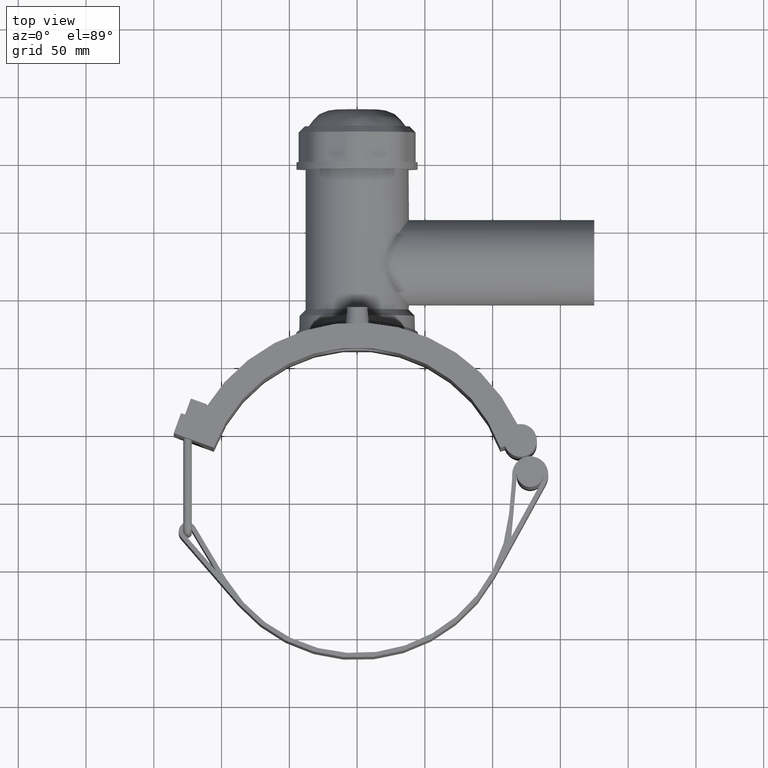
[diagram: clean part render]
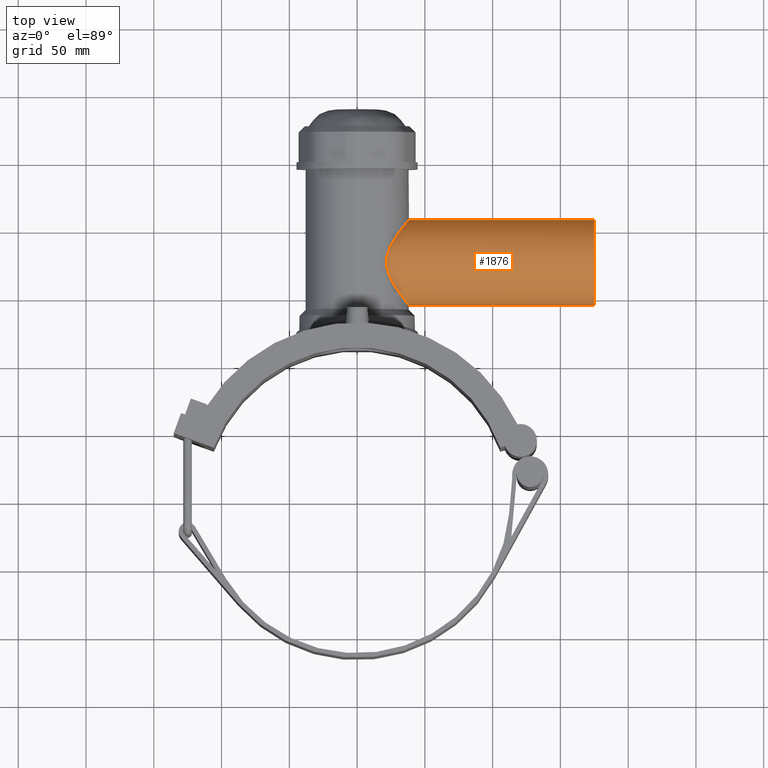
[diagram: same view with one face highlighted and labeled with its STEP entity id]
A machine part, top view. The second image highlights one B-rep face of the part: STEP entity #1876.
In plain terms, the highlighted cylindrical surface (bore or boss wall) has radius 31.5 mm, axis along (1, 0, 0).
Its self-contained STEP definition (entity closure, byte-faithful):
#364=FACE_BOUND('',#580,.T.);
#404=B_SPLINE_CURVE_WITH_KNOTS('',3,(#3012,#3013,#3014,#3015,#3016,#3017,
#3018,#3019,#3020,#3021,#3022,#3023,#3024,#3025,#3026,#3027,#3028,#3029,
#3030,#3031,#3032,#3033,#3034,#3035,#3036,#3037,#3038,#3039,#3040,#3041,
#3042,#3043,#3044,#3045,#3046,#3047,#3048,#3049,#3050,#3051,#3052,#3053,
#3054,#3055,#3056,#3057,#3058,#3059,#3060,#3061,#3062,#3063,#3064,#3065,
#3066,#3067,#3068,#3069,#3070,#3071,#3072,#3073,#3074,#3075,#3076,#3077),
 .UNSPECIFIED.,.T.,.F.,(4,2,2,2,2,2,2,2,2,2,2,2,2,2,2,2,2,2,2,2,2,2,2,2,
2,2,2,2,2,2,2,2,4),(0.,0.652796689588149,1.3055933791763,1.95839006876445,
2.6111867583526,3.23948206455184,3.86777737075108,4.49607267695031,5.12436798314955,
5.75266328934879,6.38095859554803,7.00925390174727,7.63754920794651,8.29034589753466,
8.94314258712281,9.59593927671096,10.2487359662991,10.9015326558873,11.5543293454754,
12.2071260350636,12.8599227246517,13.4882180308509,14.1165133370502,14.7448086432494,
15.3731039494487,16.0013992556479,16.6296945618471,17.2579898680464,17.8862851742456,
18.5390818638338,19.1918785534219,19.8446752430101,20.4974719325982),
 .UNSPECIFIED.);
#416=CYLINDRICAL_SURFACE('',#2001,31.5);
#455=FACE_OUTER_BOUND('',#579,.T.);
#579=EDGE_LOOP('',(#1272));
#580=EDGE_LOOP('',(#1273));
#735=CIRCLE('',#2002,31.5000000000001);
#824=VERTEX_POINT('',#3009);
#825=VERTEX_POINT('',#3011);
#1002=EDGE_CURVE('',#824,#824,#735,.T.);
#1003=EDGE_CURVE('',#825,#825,#404,.T.);
#1272=ORIENTED_EDGE('',*,*,#1002,.F.);
#1273=ORIENTED_EDGE('',*,*,#1003,.F.);
#1876=ADVANCED_FACE('',(#455,#364),#416,.T.);
#2001=AXIS2_PLACEMENT_3D('',#3008,#2220,#2221);
#2002=AXIS2_PLACEMENT_3D('',#3010,#2222,#2223);
#2220=DIRECTION('center_axis',(1.,0.,0.));
#2221=DIRECTION('ref_axis',(0.,1.,0.));
#2222=DIRECTION('center_axis',(1.,0.,0.));
#2223=DIRECTION('ref_axis',(0.,0.,-1.));
#3008=CARTESIAN_POINT('Origin',(87.5,176.5,0.));
#3009=CARTESIAN_POINT('',(175.,208.,0.));
#3010=CARTESIAN_POINT('Origin',(175.,176.5,0.));
#3011=CARTESIAN_POINT('',(21.6982142122341,176.5,-31.5));
#3012=CARTESIAN_POINT('Ctrl Pts',(21.6982142122341,176.5,-31.5));
#3013=CARTESIAN_POINT('Ctrl Pts',(21.6982142122341,174.324011034706,-31.5));
#3014=CARTESIAN_POINT('Ctrl Pts',(22.0343768586796,172.183577682531,-31.2741376319905));
#3015=CARTESIAN_POINT('Ctrl Pts',(23.2007398956815,168.050616906894,-30.418926907059));
#3016=CARTESIAN_POINT('Ctrl Pts',(24.0243956426947,166.056246059544,-29.7895749556435));
#3017=CARTESIAN_POINT('Ctrl Pts',(25.8975998798563,162.266727439002,-28.1763146954825));
#3018=CARTESIAN_POINT('Ctrl Pts',(26.9464594243519,160.469770993618,-27.1908633698675));
#3019=CARTESIAN_POINT('Ctrl Pts',(29.053881666026,157.135480776756,-24.9264254867234));
#3020=CARTESIAN_POINT('Ctrl Pts',(30.1124022762952,155.598764076137,-23.6464912908894));
#3021=CARTESIAN_POINT('Ctrl Pts',(32.0419320403235,152.905027470864,-20.9527546856161));
#3022=CARTESIAN_POINT('Ctrl Pts',(32.9904954067574,151.638558531341,-19.4477672034472));
#3023=CARTESIAN_POINT('Ctrl Pts',(34.7367127963482,149.364088353459,-16.1229408161184));
#3024=CARTESIAN_POINT('Ctrl Pts',(35.5337778302742,148.356067395002,-14.3028060934795));
#3025=CARTESIAN_POINT('Ctrl Pts',(36.852915268844,146.707904627357,-10.4442475124384));
#3026=CARTESIAN_POINT('Ctrl Pts',(37.3759384535401,146.066324368989,-8.40126277746278));
#3027=CARTESIAN_POINT('Ctrl Pts',(38.0746610206936,145.212180501508,-4.22636720518858));
#3028=CARTESIAN_POINT('Ctrl Pts',(38.25,145.,-2.0943176873308));
#3029=CARTESIAN_POINT('Ctrl Pts',(38.25,145.,2.0943176873308));
#3030=CARTESIAN_POINT('Ctrl Pts',(38.0746610206937,145.212180501508,4.22636720518858));
#3031=CARTESIAN_POINT('Ctrl Pts',(37.3759384535402,146.066324368989,8.40126277746277));
#3032=CARTESIAN_POINT('Ctrl Pts',(36.8529152688441,146.707904627357,10.4442475124384));
#3033=CARTESIAN_POINT('Ctrl Pts',(35.5337778302742,148.356067395002,14.3028060934795));
#3034=CARTESIAN_POINT('Ctrl Pts',(34.7367127963482,149.364088353459,16.1229408161184));
#3035=CARTESIAN_POINT('Ctrl Pts',(32.9904954067574,151.638558531341,19.4477672034472));
#3036=CARTESIAN_POINT('Ctrl Pts',(32.0419320403235,152.905027470864,20.9527546856161));
#3037=CARTESIAN_POINT('Ctrl Pts',(30.1124022762952,155.598764076137,23.6464912908894));
#3038=CARTESIAN_POINT('Ctrl Pts',(29.053881666026,157.135480776756,24.9264254867234));
#3039=CARTESIAN_POINT('Ctrl Pts',(26.9464594243519,160.469770993618,27.1908633698675));
#3040=CARTESIAN_POINT('Ctrl Pts',(25.8975998798564,162.266727439002,28.1763146954825));
#3041=CARTESIAN_POINT('Ctrl Pts',(24.0243956426947,166.056246059544,29.7895749556435));
#3042=CARTESIAN_POINT('Ctrl Pts',(23.2007398956816,168.050616906894,30.418926907059));
#3043=CARTESIAN_POINT('Ctrl Pts',(22.0343768586797,172.183577682531,31.2741376319905));
#3044=CARTESIAN_POINT('Ctrl Pts',(21.6982142122342,174.324011034706,31.5));
#3045=CARTESIAN_POINT('Ctrl Pts',(21.6982142122342,178.675988965294,31.5));
#3046=CARTESIAN_POINT('Ctrl Pts',(22.0343768586797,180.816422317469,31.2741376319905));
#3047=CARTESIAN_POINT('Ctrl Pts',(23.2007398956816,184.949383093106,30.4189269070589));
#3048=CARTESIAN_POINT('Ctrl Pts',(24.0243956426948,186.943753940456,29.7895749556435));
#3049=CARTESIAN_POINT('Ctrl Pts',(25.8975998798564,190.733272560998,28.1763146954825));
#3050=CARTESIAN_POINT('Ctrl Pts',(26.946459424352,192.530229006382,27.1908633698675));
#3051=CARTESIAN_POINT('Ctrl Pts',(29.053881666026,195.864519223244,24.9264254867234));
#3052=CARTESIAN_POINT('Ctrl Pts',(30.1124022762952,197.401235923863,23.6464912908894));
#3053=CARTESIAN_POINT('Ctrl Pts',(32.0419320403235,200.094972529136,20.952754685616));
#3054=CARTESIAN_POINT('Ctrl Pts',(32.9904954067574,201.361441468659,19.4477672034472));
#3055=CARTESIAN_POINT('Ctrl Pts',(34.7367127963482,203.635911646541,16.1229408161184));
#3056=CARTESIAN_POINT('Ctrl Pts',(35.5337778302742,204.643932604998,14.3028060934795));
#3057=CARTESIAN_POINT('Ctrl Pts',(36.8529152688441,206.292095372643,10.4442475124384));
#3058=CARTESIAN_POINT('Ctrl Pts',(37.3759384535402,206.933675631011,8.40126277746277));
#3059=CARTESIAN_POINT('Ctrl Pts',(38.0746610206937,207.787819498492,4.22636720518857));
#3060=CARTESIAN_POINT('Ctrl Pts',(38.25,208.,2.0943176873308));
#3061=CARTESIAN_POINT('Ctrl Pts',(38.25,208.,-2.09431768733079));
#3062=CARTESIAN_POINT('Ctrl Pts',(38.0746610206937,207.787819498492,-4.22636720518856));
#3063=CARTESIAN_POINT('Ctrl Pts',(37.3759384535401,206.933675631011,-8.40126277746276));
#3064=CARTESIAN_POINT('Ctrl Pts',(36.8529152688441,206.292095372643,-10.4442475124384));
#3065=CARTESIAN_POINT('Ctrl Pts',(35.5337778302741,204.643932604998,-14.3028060934795));
#3066=CARTESIAN_POINT('Ctrl Pts',(34.7367127963482,203.635911646541,-16.1229408161184));
#3067=CARTESIAN_POINT('Ctrl Pts',(32.9904954067574,201.361441468659,-19.4477672034472));
#3068=CARTESIAN_POINT('Ctrl Pts',(32.0419320403235,200.094972529136,-20.952754685616));
#3069=CARTESIAN_POINT('Ctrl Pts',(30.1124022762952,197.401235923863,-23.6464912908894));
#3070=CARTESIAN_POINT('Ctrl Pts',(29.053881666026,195.864519223244,-24.9264254867234));
#3071=CARTESIAN_POINT('Ctrl Pts',(26.9464594243519,192.530229006382,-27.1908633698675));
#3072=CARTESIAN_POINT('Ctrl Pts',(25.8975998798563,190.733272560998,-28.1763146954825));
#3073=CARTESIAN_POINT('Ctrl Pts',(24.0243956426947,186.943753940456,-29.7895749556435));
#3074=CARTESIAN_POINT('Ctrl Pts',(23.2007398956815,184.949383093106,-30.418926907059));
#3075=CARTESIAN_POINT('Ctrl Pts',(22.0343768586796,180.816422317469,-31.2741376319905));
#3076=CARTESIAN_POINT('Ctrl Pts',(21.6982142122341,178.675988965294,-31.5));
#3077=CARTESIAN_POINT('Ctrl Pts',(21.6982142122341,176.5,-31.5));